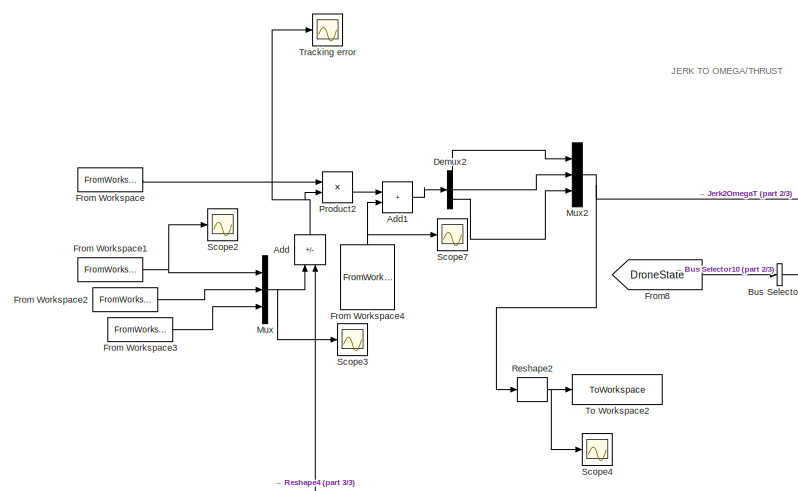
[diagram: root canvas - part 1/3, left side, full height]
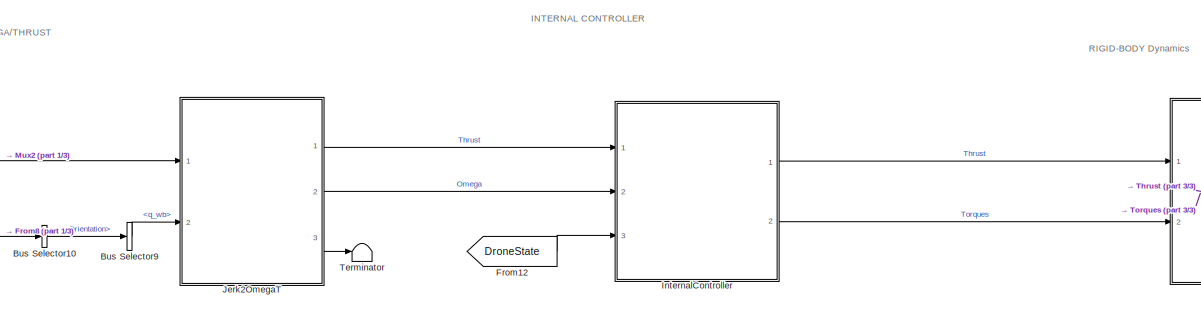
[diagram: root canvas - part 2/3, central region]
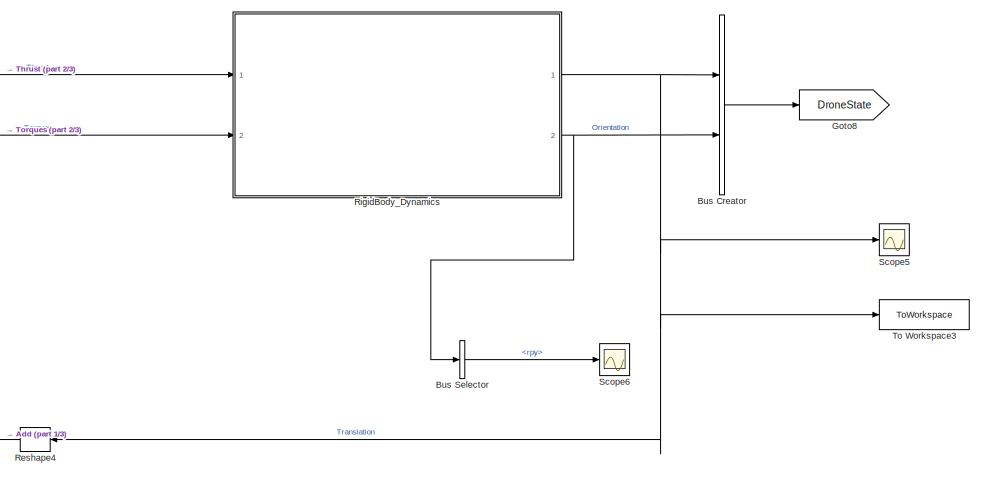
[diagram: root canvas - part 3/3, right side, full height]
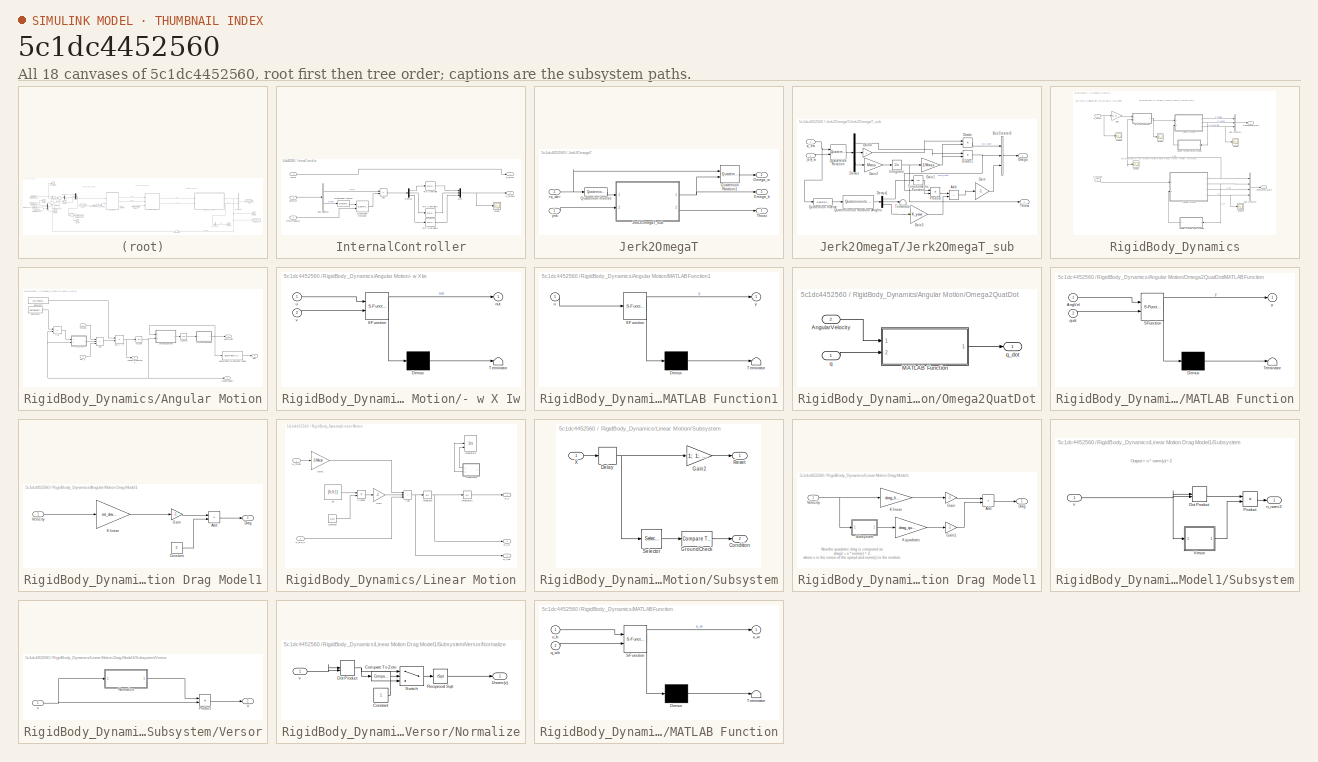
[diagram: thumbnail index - all 18 canvases of the model, root first then tree order]
MODEL slx_5c1dc4452560
KIND model
CONFIG AbsTol = auto
CONFIG EnableMultiTasking = off
CONFIG FixedStep = 0.001
CONFIG MaxStep = auto
CONFIG MinStep = auto
CONFIG RelTol = 1e-3
CONFIG SampleTimeConstraint = Unconstrained
CONFIG SolverName = FixedStepAuto
CONFIG StartTime = 0.0
CONFIG StopTime = total_sim_t
BLOCK [Sum] Add
  IconShape = rectangular
  Inputs = -+
  NameLocation = right
  Ports = [2, 1]
BLOCK [Sum] Add1
  IconShape = rectangular
  Ports = [2, 1]
BLOCK [BusCreator] Bus Creator
  DisplayOption = bar
  InheritFromInputs = on
  Inputs = 2
  Ports = [2, 1]
BLOCK [BusSelector] Bus Selector
  OutputSignals = rpy
  Ports = [1, 1]
BLOCK [BusSelector] Bus Selector10
  OutputSignals = Orientation
  Ports = [1, 1]
BLOCK [BusSelector] Bus Selector9
  OutputSignals = q_wb
  Ports = [1, 1]
BLOCK [Demux] Demux2
  Outputs = 3
  Ports = [1, 3]
BLOCK [FromWorkspace] From Workspace
  VariableName = controller
BLOCK [FromWorkspace] From Workspace1
  VariableName = Reference
BLOCK [FromWorkspace] From Workspace2
  VariableName = Reference_d
BLOCK [FromWorkspace] From Workspace3
  VariableName = Reference_dd
BLOCK [FromWorkspace] From Workspace4
  NameLocation = right
  VariableName = Reference_ddd
BLOCK [From] From12
  GotoTag = DroneState
BLOCK [From] From8
  GotoTag = DroneState
BLOCK [Goto] Goto8
  GotoTag = DroneState
BLOCK [SubSystem] InternalController
  Ports = [3, 2]
  RequestExecContextInheritance = off
BLOCK [Sum] InternalController/Add
  IconShape = rectangular
  Inputs = -+
  Ports = [2, 1]
BLOCK [BusSelector] InternalController/Bus Selector
  OutputSignals = Orientation.b_w,Orientation.q_wb
  Ports = [1, 2]
BLOCK [Demux] InternalController/Demux
  Outputs = 3
  Ports = [1, 3]
BLOCK [Mux] InternalController/Mux
  DisplayOption = bar
  Inputs = 3
  Ports = [3, 1]
BLOCK [Reference] InternalController/PID Controller  REF=pid_lib/PID Controller
  Ports = [1, 1]
  SourceBlock = pid_lib/PID Controller
  SourceProductBaseCode = SL
  SourceType = PID 1dof
BLOCK [Reference] InternalController/PID Controller1  REF=pid_lib/PID Controller
  Ports = [1, 1]
  SourceBlock = pid_lib/PID Controller
  SourceProductBaseCode = SL
  SourceType = PID 1dof
BLOCK [Reference] InternalController/PID Controller2  REF=pid_lib/PID Controller
  Ports = [1, 1]
  SourceBlock = pid_lib/PID Controller
  SourceProductBaseCode = SL
  SourceType = PID 1dof
BLOCK [Reference] InternalController/Quaternion Inverse  REF=aerolibutil/Quaternion
Inverse
  Ports = [1, 1]
  SourceBlock = aerolibutil/Quaternion\nInverse
  SourceProductBaseCode = AE
  SourceType = Quaternion Inverse
BLOCK [Reference] InternalController/Quaternion Rotation  REF=aerolibutil/Quaternion
Rotation
  Ports = [2, 1]
  SourceBlock = aerolibutil/Quaternion\nRotation
  SourceProductBaseCode = AE
  SourceType = Quaternion Rotation
BLOCK [Inport] InternalController/RefOmega_w
  Port = 2
BLOCK [Scope] InternalController/Scope
  Floating = off
  NumInputPorts = 1
  Ports = [1]
  ScopeSpecificationString = Simulink.scopes.TimeScopeBlockCfg('CurrentConfiguration', extmgr.ConfigurationSet(extmgr.Configuration('Core','General UI',true),extmgr.Configuration('Core','Source UI',true),extmgr.Configuration('Sources','WiredSimulink',true,'DataLoggingVariableName','ScopeData1'),extmgr.Configuration('Visuals','Time Domain',true,'SerializedDisplays',{struct('MinYLimReal','-0.000013','MaxYLimReal','0.000008','YL...<+1439ch>
BLOCK [Inport] InternalController/State_w
  Port = 3
BLOCK [Inport] InternalController/Thrust
BLOCK [Outport] InternalController/b_Thrust
BLOCK [Outport] InternalController/b_Torques
  Port = 2
BLOCK [SubSystem] Jerk2OmegaT
  Ports = [2, 3]
  RequestExecContextInheritance = off
BLOCK [Inport] Jerk2OmegaT/<q_wb>
  Port = 2
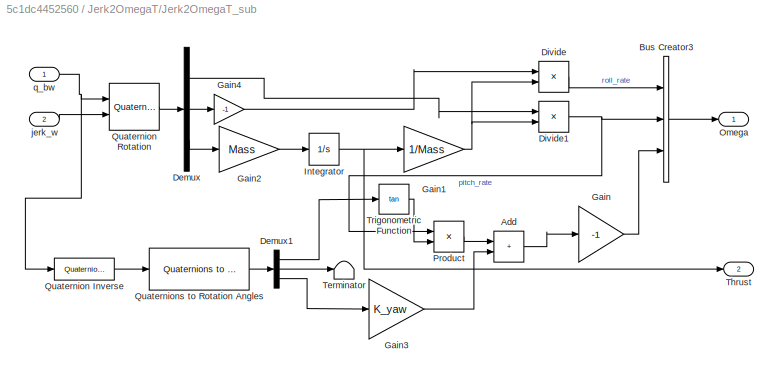
BLOCK [SubSystem] Jerk2OmegaT/Jerk2OmegaT_sub
  Ports = [2, 2]
  RequestExecContextInheritance = off
BLOCK [Sum] Jerk2OmegaT/Jerk2OmegaT_sub/Add
  IconShape = rectangular
  Ports = [2, 1]
BLOCK [BusCreator] Jerk2OmegaT/Jerk2OmegaT_sub/Bus Creator3
  DisplayOption = bar
  InheritFromInputs = on
  Inputs = 3
  Ports = [3, 1]
BLOCK [Demux] Jerk2OmegaT/Jerk2OmegaT_sub/Demux
  Outputs = 3
  Ports = [1, 3]
BLOCK [Demux] Jerk2OmegaT/Jerk2OmegaT_sub/Demux1
  Outputs = 3
  Ports = [1, 3]
BLOCK [Product] Jerk2OmegaT/Jerk2OmegaT_sub/Divide
  Inputs = */
  Ports = [2, 1]
BLOCK [Product] Jerk2OmegaT/Jerk2OmegaT_sub/Divide1
  Inputs = */
  Ports = [2, 1]
BLOCK [Gain] Jerk2OmegaT/Jerk2OmegaT_sub/Gain
  Gain = -1
BLOCK [Gain] Jerk2OmegaT/Jerk2OmegaT_sub/Gain1
  Gain = 1/Mass
BLOCK [Gain] Jerk2OmegaT/Jerk2OmegaT_sub/Gain2
  Gain = Mass
BLOCK [Gain] Jerk2OmegaT/Jerk2OmegaT_sub/Gain3
  Gain = K_yaw
BLOCK [Gain] Jerk2OmegaT/Jerk2OmegaT_sub/Gain4
  Gain = -1
BLOCK [Integrator] Jerk2OmegaT/Jerk2OmegaT_sub/Integrator
  InitialCondition = Mass * G_acc
  LimitOutput = on
  LowerSaturationLimit = mdl_cnstr.Tmin
  Ports = [1, 1]
  UpperSaturationLimit = mdl_cnstr.Tmax
BLOCK [Outport] Jerk2OmegaT/Jerk2OmegaT_sub/Omega
BLOCK [Product] Jerk2OmegaT/Jerk2OmegaT_sub/Product
  Ports = [2, 1]
BLOCK [Reference] Jerk2OmegaT/Jerk2OmegaT_sub/Quaternion Inverse  REF=aerolibutil/Quaternion
Inverse
  Ports = [1, 1]
  SourceBlock = aerolibutil/Quaternion\nInverse
  SourceProductBaseCode = AE
  SourceType = Quaternion Inverse
BLOCK [Reference] Jerk2OmegaT/Jerk2OmegaT_sub/Quaternion Rotation  REF=aerolibutil/Quaternion
Rotation
  Ports = [2, 1]
  SourceBlock = aerolibutil/Quaternion\nRotation
  SourceProductBaseCode = AE
  SourceType = Quaternion Rotation
BLOCK [Reference] Jerk2OmegaT/Jerk2OmegaT_sub/Quaternions to Rotation Angles  REF=sharedtransform/Quaternions to Rotation Angles
  AttributesFormatString = Rotation Order: %<rotationOrder>
  Ports = [1, 1]
  SourceBlock = sharedtransform/Quaternions to Rotation Angles
  SourceProductBaseCode = AE,PW,MT,UV,VE,VP
  SourceType = Quat2Ang
BLOCK [Terminator] Jerk2OmegaT/Jerk2OmegaT_sub/Terminator
BLOCK [Outport] Jerk2OmegaT/Jerk2OmegaT_sub/Thrust
  Port = 2
BLOCK [Trigonometry] Jerk2OmegaT/Jerk2OmegaT_sub/Trigonometric Function
  Operator = tan
  Ports = [1, 1]
BLOCK [Inport] Jerk2OmegaT/Jerk2OmegaT_sub/jerk_w
  Port = 2
BLOCK [Inport] Jerk2OmegaT/Jerk2OmegaT_sub/q_bw
BLOCK [Outport] Jerk2OmegaT/Omega_b
  Port = 3
BLOCK [Outport] Jerk2OmegaT/Omega_w
  Port = 2
BLOCK [Reference] Jerk2OmegaT/Quaternion Inverse  REF=aerolibutil/Quaternion
Inverse
  Ports = [1, 1]
  SourceBlock = aerolibutil/Quaternion\nInverse
  SourceProductBaseCode = AE
  SourceType = Quaternion Inverse
BLOCK [Reference] Jerk2OmegaT/Quaternion Rotation1  REF=aerolibutil/Quaternion
Rotation
  Ports = [2, 1]
  SourceBlock = aerolibutil/Quaternion\nRotation
  SourceProductBaseCode = AE
  SourceType = Quaternion Rotation
BLOCK [Outport] Jerk2OmegaT/Thrust
BLOCK [Inport] Jerk2OmegaT/jerk
BLOCK [Mux] Mux
  DisplayOption = bar
  Inputs = 3
  Ports = [3, 1]
BLOCK [Mux] Mux2
  DisplayOption = bar
  Inputs = 3
  Ports = [3, 1]
BLOCK [Product] Product2
  Multiplication = Matrix(*)
  Ports = [2, 1]
BLOCK [Reshape] Reshape2
  Ports = [1, 1]
BLOCK [Reshape] Reshape4
  NameLocation = top
  OutputDimensionality = Column vector (2-D)
  Ports = [1, 1]
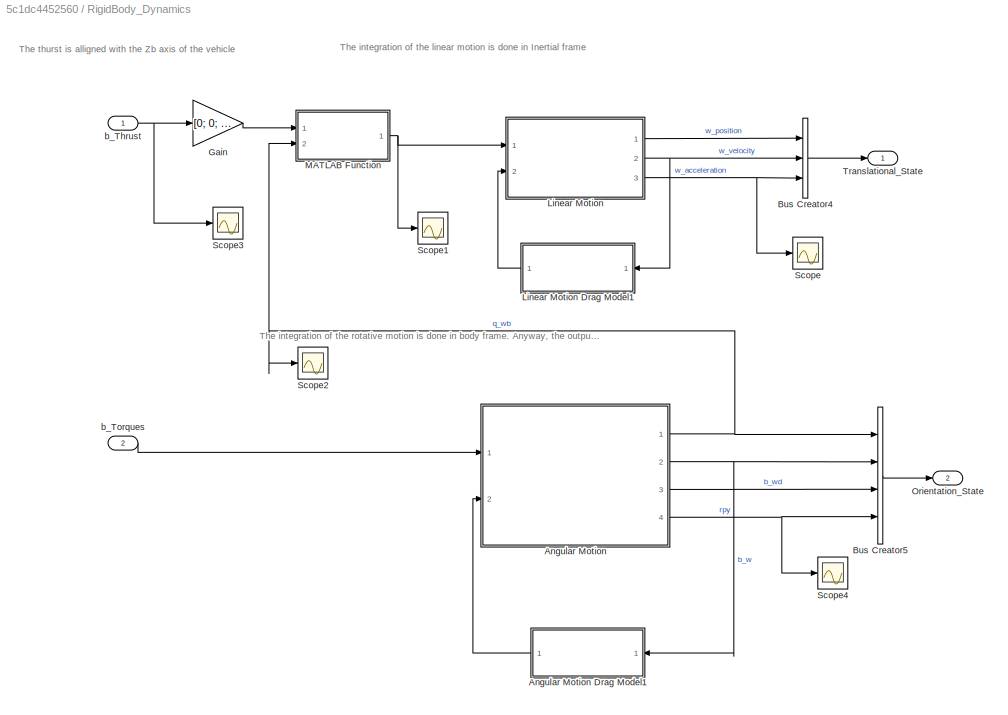
BLOCK [SubSystem] RigidBody_Dynamics
  Ports = [2, 2]
  RequestExecContextInheritance = off
BLOCK [SubSystem] RigidBody_Dynamics/Angular Motion
  Ports = [2, 4]
  RequestExecContextInheritance = off
BLOCK [SubSystem] RigidBody_Dynamics/Angular Motion Drag Model1
  NameLocation = top
  Ports = [1, 1]
  RequestExecContextInheritance = off
BLOCK [Sum] RigidBody_Dynamics/Angular Motion Drag Model1/Add
  IconShape = rectangular
  Ports = [2, 1]
BLOCK [Constant] RigidBody_Dynamics/Angular Motion Drag Model1/Constant
  Value = 0
BLOCK [Outport] RigidBody_Dynamics/Angular Motion Drag Model1/Drag
BLOCK [Gain] RigidBody_Dynamics/Angular Motion Drag Model1/Gain
  Gain = -1
BLOCK [Gain] RigidBody_Dynamics/Angular Motion Drag Model1/K linear
  Gain = rot_drag_linear
BLOCK [Inport] RigidBody_Dynamics/Angular Motion Drag Model1/Velocity
BLOCK [SubSystem] RigidBody_Dynamics/Angular Motion/- w X Iw
  ErrorFcn = Stateflow.Translate.translate
  PermitHierarchicalResolution = ExplicitOnly
  Ports = [2, 1]
  RequestExecContextInheritance = off
  SFBlockType = MATLAB Function
  TreatAsAtomicUnit = on
BLOCK [Demux] RigidBody_Dynamics/Angular Motion/- w X Iw/ Demux 
  Outputs = 1
  Ports = [1, 1]
BLOCK [S-Function] RigidBody_Dynamics/Angular Motion/- w X Iw/ SFunction 
  EnableBusSupport = on
  FunctionName = sf_sfun
  PortCounts = [2 2]
  Ports = [2, 2]
  SFcnIsStateOwnerBlock = off
  SFunctionDeploymentMode = off
  Tag = Stateflow S-Function 3
BLOCK [Terminator] RigidBody_Dynamics/Angular Motion/- w X Iw/ Terminator 
BLOCK [Outport] RigidBody_Dynamics/Angular Motion/- w X Iw/out
BLOCK [Inport] RigidBody_Dynamics/Angular Motion/- w X Iw/u
BLOCK [Inport] RigidBody_Dynamics/Angular Motion/- w X Iw/v
  Port = 2
BLOCK [Integrator] RigidBody_Dynamics/Angular Motion/Acc2Vel
  InitialCondition = InitialAngularVelocity
  Ports = [1, 1]
BLOCK [Sum] RigidBody_Dynamics/Angular Motion/Add
  IconShape = rectangular
  Inputs = +++
  Ports = [3, 1]
BLOCK [Outport] RigidBody_Dynamics/Angular Motion/AngularAcceleration
  Port = 3
BLOCK [Outport] RigidBody_Dynamics/Angular Motion/AngularVelocity
  Port = 2
BLOCK [Constant] RigidBody_Dynamics/Angular Motion/Constant1
  Value = InertiaMatrix
BLOCK [Constant] RigidBody_Dynamics/Angular Motion/Constant2
  Value = Inv_InertiaMatrix
BLOCK [Inport] RigidBody_Dynamics/Angular Motion/Ext_T
  Port = 2
BLOCK [Product] RigidBody_Dynamics/Angular Motion/I w
  Multiplication = Matrix(*)
  Ports = [2, 1]
BLOCK [SubSystem] RigidBody_Dynamics/Angular Motion/MATLAB Function1
  ErrorFcn = Stateflow.Translate.translate
  PermitHierarchicalResolution = ExplicitOnly
  Ports = [1, 1]
  RequestExecContextInheritance = off
  SFBlockType = MATLAB Function
  TreatAsAtomicUnit = on
BLOCK [Demux] RigidBody_Dynamics/Angular Motion/MATLAB Function1/ Demux 
  Outputs = 1
  Ports = [1, 1]
BLOCK [S-Function] RigidBody_Dynamics/Angular Motion/MATLAB Function1/ SFunction 
  EnableBusSupport = on
  FunctionName = sf_sfun
  PortCounts = [1 2]
  Ports = [1, 2]
  SFcnIsStateOwnerBlock = off
  SFunctionDeploymentMode = off
  Tag = Stateflow S-Function 9
BLOCK [Terminator] RigidBody_Dynamics/Angular Motion/MATLAB Function1/ Terminator 
BLOCK [Inport] RigidBody_Dynamics/Angular Motion/MATLAB Function1/u
BLOCK [Outport] RigidBody_Dynamics/Angular Motion/MATLAB Function1/y
BLOCK [SubSystem] RigidBody_Dynamics/Angular Motion/Omega2QuatDot
  Ports = [2, 1]
  RequestExecContextInheritance = off
BLOCK [Inport] RigidBody_Dynamics/Angular Motion/Omega2QuatDot/AngularVelocity
  Port = 2
BLOCK [SubSystem] RigidBody_Dynamics/Angular Motion/Omega2QuatDot/MATLAB Function
  ErrorFcn = Stateflow.Translate.translate
  PermitHierarchicalResolution = ExplicitOnly
  Ports = [2, 1]
  RequestExecContextInheritance = off
  SFBlockType = MATLAB Function
  TreatAsAtomicUnit = on
BLOCK [Demux] RigidBody_Dynamics/Angular Motion/Omega2QuatDot/MATLAB Function/ Demux 
  Outputs = 1
  Ports = [1, 1]
BLOCK [S-Function] RigidBody_Dynamics/Angular Motion/Omega2QuatDot/MATLAB Function/ SFunction 
  EnableBusSupport = on
  FunctionName = sf_sfun
  PortCounts = [2 2]
  Ports = [2, 2]
  SFcnIsStateOwnerBlock = off
  SFunctionDeploymentMode = off
  Tag = Stateflow S-Function 5
BLOCK [Terminator] RigidBody_Dynamics/Angular Motion/Omega2QuatDot/MATLAB Function/ Terminator 
BLOCK [Inport] RigidBody_Dynamics/Angular Motion/Omega2QuatDot/MATLAB Function/AngVel
BLOCK [Inport] RigidBody_Dynamics/Angular Motion/Omega2QuatDot/MATLAB Function/quat
  Port = 2
BLOCK [Outport] RigidBody_Dynamics/Angular Motion/Omega2QuatDot/MATLAB Function/y
BLOCK [Inport] RigidBody_Dynamics/Angular Motion/Omega2QuatDot/q
BLOCK [Outport] RigidBody_Dynamics/Angular Motion/Omega2QuatDot/q_dot
BLOCK [Outport] RigidBody_Dynamics/Angular Motion/Quaternion
BLOCK [Reference] RigidBody_Dynamics/Angular Motion/Quaternions to Rotation Angles  REF=sharedtransform/Quaternions to Rotation Angles
  AttributesFormatString = Rotation Order: %<rotationOrder>
  Ports = [1, 1]
  SourceBlock = sharedtransform/Quaternions to Rotation Angles
  SourceProductBaseCode = AE,PW,MT,UV,VE,VP
  SourceType = Quat2Ang
BLOCK [Outport] RigidBody_Dynamics/Angular Motion/RPY
  Port = 4
BLOCK [Inport] RigidBody_Dynamics/Angular Motion/Torques
BLOCK [Product] RigidBody_Dynamics/Angular Motion/inv(I) * t
  Multiplication = Matrix(*)
  Ports = [2, 1]
BLOCK [Integrator] RigidBody_Dynamics/Angular Motion/q_dot2q
  InitialCondition = q0
  Ports = [1, 1]
BLOCK [BusCreator] RigidBody_Dynamics/Bus Creator4
  DisplayOption = bar
  InheritFromInputs = on
  Inputs = 3
  Ports = [3, 1]
BLOCK [BusCreator] RigidBody_Dynamics/Bus Creator5
  DisplayOption = bar
  InheritFromInputs = on
  Inputs = 4
  Ports = [4, 1]
BLOCK [Gain] RigidBody_Dynamics/Gain
  Gain = [0; 0; 1]
BLOCK [SubSystem] RigidBody_Dynamics/Linear Motion
  Ports = [2, 3]
  RequestExecContextInheritance = off
BLOCK [SubSystem] RigidBody_Dynamics/Linear Motion Drag Model1
  NameLocation = top
  Ports = [1, 1]
  RequestExecContextInheritance = off
BLOCK [Sum] RigidBody_Dynamics/Linear Motion Drag Model1/Add
  IconShape = rectangular
  Ports = [2, 1]
BLOCK [Outport] RigidBody_Dynamics/Linear Motion Drag Model1/Drag
BLOCK [Gain] RigidBody_Dynamics/Linear Motion Drag Model1/Gain
  Gain = -1
BLOCK [Gain] RigidBody_Dynamics/Linear Motion Drag Model1/Gain1
  Gain = -1
BLOCK [Gain] RigidBody_Dynamics/Linear Motion Drag Model1/K linear
  Gain = drag_linear
BLOCK [Gain] RigidBody_Dynamics/Linear Motion Drag Model1/K quadratic
  Gain = drag_quadratic
BLOCK [SubSystem] RigidBody_Dynamics/Linear Motion Drag Model1/Subsystem
  Ports = [1, 1]
  RequestExecContextInheritance = off
BLOCK [DotProduct] RigidBody_Dynamics/Linear Motion Drag Model1/Subsystem/Dot Product
  OutDataTypeStr = Inherit: Inherit via internal rule
BLOCK [Product] RigidBody_Dynamics/Linear Motion Drag Model1/Subsystem/Product
  Ports = [2, 1]
BLOCK [SubSystem] RigidBody_Dynamics/Linear Motion Drag Model1/Subsystem/Versor
  Ports = [1, 1]
  RequestExecContextInheritance = off
BLOCK [SubSystem] RigidBody_Dynamics/Linear Motion Drag Model1/Subsystem/Versor/Normalize
  Ports = [1, 1]
  RequestExecContextInheritance = off
BLOCK [Outport] RigidBody_Dynamics/Linear Motion Drag Model1/Subsystem/Versor/Normalize/1//norm(v)
BLOCK [Reference] RigidBody_Dynamics/Linear Motion Drag Model1/Subsystem/Versor/Normalize/Compare To Zero  REF=simulink/Logic and Bit
Operations/Compare
To Zero
  Ports = [1, 1]
  SourceBlock = simulink/Logic and Bit\nOperations/Compare\nTo Zero
  SourceProductBaseCode = SL
  SourceType = Compare To Zero
BLOCK [Constant] RigidBody_Dynamics/Linear Motion Drag Model1/Subsystem/Versor/Normalize/Constant
BLOCK [DotProduct] RigidBody_Dynamics/Linear Motion Drag Model1/Subsystem/Versor/Normalize/Dot Product
  OutDataTypeStr = Inherit: Inherit via internal rule
BLOCK [Sqrt] RigidBody_Dynamics/Linear Motion Drag Model1/Subsystem/Versor/Normalize/Reciprocal Sqrt
  Operator = rSqrt
BLOCK [Switch] RigidBody_Dynamics/Linear Motion Drag Model1/Subsystem/Versor/Normalize/Switch
  Criteria = u2 > Threshold
  InputSameDT = off
  SaturateOnIntegerOverflow = off
BLOCK [Inport] RigidBody_Dynamics/Linear Motion Drag Model1/Subsystem/Versor/Normalize/v
BLOCK [Product] RigidBody_Dynamics/Linear Motion Drag Model1/Subsystem/Versor/Product
  Ports = [2, 1]
BLOCK [Outport] RigidBody_Dynamics/Linear Motion Drag Model1/Subsystem/Versor/n
BLOCK [Inport] RigidBody_Dynamics/Linear Motion Drag Model1/Subsystem/Versor/v
BLOCK [Outport] RigidBody_Dynamics/Linear Motion Drag Model1/Subsystem/n_norm2
BLOCK [Inport] RigidBody_Dynamics/Linear Motion Drag Model1/Subsystem/v
BLOCK [Inport] RigidBody_Dynamics/Linear Motion Drag Model1/Velocity
BLOCK [Sum] RigidBody_Dynamics/Linear Motion/Add
  IconShape = rectangular
  Inputs = +++
  Ports = [3, 1]
BLOCK [Constant] RigidBody_Dynamics/Linear Motion/Constant
  Value = G_acc
BLOCK [Gain] RigidBody_Dynamics/Linear Motion/Gain
  Gain = -1
BLOCK [Gain] RigidBody_Dynamics/Linear Motion/Gain1
  Gain = 1/Mass
BLOCK [Integrator] RigidBody_Dynamics/Linear Motion/Integrator
  ContinuousStateAttributes = 'velocity'
  InitialCondition = InitialVelocity
  Ports = [1, 1]
BLOCK [Integrator] RigidBody_Dynamics/Linear Motion/Integrator1
  Commented = on
  ContinuousStateAttributes = 'position'
  ExternalReset = level
  InitialCondition = InitialPosition
  InitialConditionSource = external
  Ports = [3, 1]
BLOCK [Integrator] RigidBody_Dynamics/Linear Motion/Integrator2
  ContinuousStateAttributes = 'position'
  InitialCondition = InitialPosition
  Ports = [1, 1]
BLOCK [Product] RigidBody_Dynamics/Linear Motion/Product
  Ports = [2, 1]
BLOCK [SubSystem] RigidBody_Dynamics/Linear Motion/Subsystem
  Commented = on
  NameLocation = top
  Ports = [1, 2]
  RequestExecContextInheritance = off
BLOCK [Outport] RigidBody_Dynamics/Linear Motion/Subsystem/Condition
  Port = 2
BLOCK [Delay] RigidBody_Dynamics/Linear Motion/Subsystem/Delay
  DelayLength = 1
  InitialCondition = 0
  InputPortMap = u0
  Ports = [1, 1]
BLOCK [Gain] RigidBody_Dynamics/Linear Motion/Subsystem/Gain2
  Gain = [1; 1; 0]
BLOCK [Reference] RigidBody_Dynamics/Linear Motion/Subsystem/GroundCheck  REF=simulink/Logic and Bit
Operations/Compare
To Constant
  Ports = [1, 1]
  SourceBlock = simulink/Logic and Bit\nOperations/Compare\nTo Constant
  SourceProductBaseCode = SL
  SourceType = Compare To Constant
BLOCK [Outport] RigidBody_Dynamics/Linear Motion/Subsystem/Reset
BLOCK [Selector] RigidBody_Dynamics/Linear Motion/Subsystem/Selector
  IndexOptions = Index vector (dialog)
  Indices = [3]
  InputPortWidth = 3
  OutputSizes = 1
  Ports = [1, 1]
BLOCK [Inport] RigidBody_Dynamics/Linear Motion/Subsystem/X
BLOCK [Constant] RigidBody_Dynamics/Linear Motion/Zw
  Value = [0;0;1]
BLOCK [Inport] RigidBody_Dynamics/Linear Motion/w_Ext_F
  Port = 2
BLOCK [Inport] RigidBody_Dynamics/Linear Motion/w_Thrust
BLOCK [Outport] RigidBody_Dynamics/Linear Motion/w_X
BLOCK [Outport] RigidBody_Dynamics/Linear Motion/w_Xd
  Port = 2
BLOCK [Outport] RigidBody_Dynamics/Linear Motion/w_Xdd
  Port = 3
BLOCK [SubSystem] RigidBody_Dynamics/MATLAB Function
  ErrorFcn = Stateflow.Translate.translate
  PermitHierarchicalResolution = ExplicitOnly
  Ports = [2, 1]
  RequestExecContextInheritance = off
  SFBlockType = MATLAB Function
  TreatAsAtomicUnit = on
BLOCK [Demux] RigidBody_Dynamics/MATLAB Function/ Demux 
  Outputs = 1
  Ports = [1, 1]
BLOCK [S-Function] RigidBody_Dynamics/MATLAB Function/ SFunction 
  EnableBusSupport = on
  FunctionName = sf_sfun
  PortCounts = [2 2]
  Ports = [2, 2]
  SFcnIsStateOwnerBlock = off
  SFunctionDeploymentMode = off
  Tag = Stateflow S-Function 10
BLOCK [Terminator] RigidBody_Dynamics/MATLAB Function/ Terminator 
BLOCK [Inport] RigidBody_Dynamics/MATLAB Function/q_wb
  Port = 2
BLOCK [Inport] RigidBody_Dynamics/MATLAB Function/u_b
BLOCK [Outport] RigidBody_Dynamics/MATLAB Function/u_w
BLOCK [Outport] RigidBody_Dynamics/Orientation_State
  Port = 2
BLOCK [Scope] RigidBody_Dynamics/Scope
  Floating = off
  NumInputPorts = 1
  Ports = [1]
  ScopeSpecificationString = Simulink.scopes.TimeScopeBlockCfg('CurrentConfiguration', extmgr.ConfigurationSet(extmgr.Configuration('Core','General UI',true),extmgr.Configuration('Core','Source UI',true),extmgr.Configuration('Sources','WiredSimulink',true,'DataLoggingVariableName','ScopeData5'),extmgr.Configuration('Visuals','Time Domain',true,'SerializedDisplays',{struct('MinYLimReal','-5.82619','MaxYLimReal','6.16241','YLab...<+1442ch>
BLOCK [Scope] RigidBody_Dynamics/Scope1
  Floating = off
  NumInputPorts = 1
  Ports = [1]
  ScopeSpecificationString = Simulink.scopes.TimeScopeBlockCfg('CurrentConfiguration', extmgr.ConfigurationSet(extmgr.Configuration('Core','General UI',true),extmgr.Configuration('Core','Source UI',true),extmgr.Configuration('Sources','WiredSimulink',true,'DataLoggingVariableName','ScopeData6'),extmgr.Configuration('Visuals','Time Domain',true,'SerializedDisplays',{struct('MinYLimReal','-0.21438','MaxYLimReal','0.44866','YLab...<+1778ch>
BLOCK [Scope] RigidBody_Dynamics/Scope2
  Floating = off
  NumInputPorts = 1
  Ports = [1]
  ScopeSpecificationString = Simulink.scopes.TimeScopeBlockCfg('CurrentConfiguration', extmgr.ConfigurationSet(extmgr.Configuration('Core','General UI',true),extmgr.Configuration('Core','Source UI',true),extmgr.Configuration('Sources','WiredSimulink',true,'DataLoggingVariableName','ScopeData7'),extmgr.Configuration('Visuals','Time Domain',true,'SerializedDisplays',{struct('MinYLimReal','-0.16948','MaxYLimReal','1.12853','YLab...<+1768ch>
BLOCK [Scope] RigidBody_Dynamics/Scope3
  Floating = off
  NumInputPorts = 1
  Ports = [1]
  ScopeSpecificationString = Simulink.scopes.TimeScopeBlockCfg('CurrentConfiguration', extmgr.ConfigurationSet(extmgr.Configuration('Core','General UI',true),extmgr.Configuration('Core','Source UI',true),extmgr.Configuration('Sources','WiredSimulink',true,'DataLoggingVariableName','ScopeData8'),extmgr.Configuration('Visuals','Time Domain',true,'SerializedDisplays',{struct('MinYLimReal','0.29216','MaxYLimReal','0.41355','YLabe...<+1697ch>
BLOCK [Scope] RigidBody_Dynamics/Scope4
  Floating = off
  NumInputPorts = 1
  Ports = [1]
  ScopeSpecificationString = Simulink.scopes.TimeScopeBlockCfg('CurrentConfiguration', extmgr.ConfigurationSet(extmgr.Configuration('Core','General UI',true),extmgr.Configuration('Core','Source UI',true),extmgr.Configuration('Sources','WiredSimulink',true,'DataLoggingVariableName','ScopeData1'),extmgr.Configuration('Visuals','Time Domain',true,'SerializedDisplays',{struct('MinYLimReal','-0.21568','MaxYLimReal','0.21466','YLab...<+1742ch>
BLOCK [Outport] RigidBody_Dynamics/Translational_State
BLOCK [Inport] RigidBody_Dynamics/b_Thrust
BLOCK [Inport] RigidBody_Dynamics/b_Torques
  Port = 2
BLOCK [Scope] Scope2
  Floating = off
  NumInputPorts = 1
  Ports = [1]
  ScopeSpecificationString = Simulink.scopes.TimeScopeBlockCfg('CurrentConfiguration', extmgr.ConfigurationSet(extmgr.Configuration('Core','General UI',true),extmgr.Configuration('Core','Source UI',true),extmgr.Configuration('Sources','WiredSimulink',true,'DataLoggingVariableName','ScopeData1'),extmgr.Configuration('Visuals','Time Domain',true,'SerializedDisplays',{struct('MinYLimReal','-2.29833','MaxYLimReal','1.36648','YLab...<+1778ch>
BLOCK [Scope] Scope3
  Floating = off
  NumInputPorts = 1
  Ports = [1]
  ScopeSpecificationString = Simulink.scopes.TimeScopeBlockCfg('CurrentConfiguration', extmgr.ConfigurationSet(extmgr.Configuration('Core','General UI',true),extmgr.Configuration('Core','Source UI',true),extmgr.Configuration('Sources','WiredSimulink',true,'DataLoggingVariableName','ScopeData2'),extmgr.Configuration('Visuals','Time Domain',true,'SerializedDisplays',{struct('MinYLimReal','-3.66092','MaxYLimReal','3.02316','YLab...<+1898ch>
BLOCK [Scope] Scope4
  Floating = off
  NumInputPorts = 1
  Ports = [1]
  ScopeSpecificationString = Simulink.scopes.TimeScopeBlockCfg('CurrentConfiguration', extmgr.ConfigurationSet(extmgr.Configuration('Core','General UI',true),extmgr.Configuration('Core','Source UI',true),extmgr.Configuration('Sources','WiredSimulink',true,'DataLoggingVariableName','ScopeData1'),extmgr.Configuration('Visuals','Time Domain',true,'SerializedDisplays',{struct('MinYLimReal','-478.76376','MaxYLimReal','480.50109','...<+1771ch>
BLOCK [Scope] Scope5
  Floating = off
  NumInputPorts = 1
  Ports = [1]
  ScopeSpecificationString = Simulink.scopes.TimeScopeBlockCfg('CurrentConfiguration', extmgr.ConfigurationSet(extmgr.Configuration('Core','General UI',true),extmgr.Configuration('Core','Source UI',true),extmgr.Configuration('Sources','WiredSimulink',true,'DataLoggingVariableName','ScopeData2'),extmgr.Configuration('Visuals','Time Domain',true,'SerializedDisplays',{struct('MinYLimReal','-11.37894','MaxYLimReal','4.2723','YLab...<+1897ch>
BLOCK [Scope] Scope6
  Floating = off
  NumInputPorts = 1
  Ports = [1]
  ScopeSpecificationString = Simulink.scopes.TimeScopeBlockCfg('CurrentConfiguration', extmgr.ConfigurationSet(extmgr.Configuration('Core','General UI',true),extmgr.Configuration('Core','Source UI',true),extmgr.Configuration('Sources','WiredSimulink',true,'DataLoggingVariableName','ScopeData3'),extmgr.Configuration('Visuals','Time Domain',true,'SerializedDisplays',{struct('MinYLimReal','-0.21553','MaxYLimReal','0.21445','YLab...<+1459ch>
BLOCK [Scope] Scope7
  Floating = off
  NumInputPorts = 1
  Ports = [1]
  ScopeSpecificationString = Simulink.scopes.TimeScopeBlockCfg('CurrentConfiguration', extmgr.ConfigurationSet(extmgr.Configuration('Core','General UI',true),extmgr.Configuration('Core','Source UI',true),extmgr.Configuration('Sources','WiredSimulink',true,'DataLoggingVariableName','ScopeData3'),extmgr.Configuration('Visuals','Time Domain',true,'SerializedDisplays',{struct('MinYLimReal','-476.66203','MaxYLimReal','476.66353','...<+1792ch>
BLOCK [Terminator] Terminator
BLOCK [ToWorkspace] To Workspace2
  FixptAsFi = on
  MaxDataPoints = inf
  Ports = [1]
  SampleTime = -1
  SaveFormat = Structure With Time
  VariableName = v
BLOCK [ToWorkspace] To Workspace3
  FixptAsFi = on
  MaxDataPoints = inf
  Ports = [1]
  SampleTime = -1
  SaveFormat = Structure With Time
  VariableName = z
BLOCK [Scope] Tracking error
  Floating = off
  NumInputPorts = 1
  Ports = [1]
  ScopeSpecificationString = Simulink.scopes.TimeScopeBlockCfg('CurrentConfiguration', extmgr.ConfigurationSet(extmgr.Configuration('Core','General UI',true),extmgr.Configuration('Core','Source UI',true),extmgr.Configuration('Sources','WiredSimulink',true,'DataLoggingVariableName','ScopeData2'),extmgr.Configuration('Visuals','Time Domain',true,'SerializedDisplays',{struct('MinYLimReal','-0.49734','MaxYLimReal','0.36767','YLab...<+1834ch>
ANNOTATION (root): INTERNAL CONTROLLER
ANNOTATION (root): JERK TO OMEGA/THRUST
ANNOTATION (root): RIGID-BODY Dynamics
ANNOTATION RigidBody_Dynamics: The integration of the linear motion is done in Inertial frame
ANNOTATION RigidBody_Dynamics: The integration of the rotative motion is done in body frame. Anyway, the output quaternion is the one that maps local quantities into global.
ANNOTATION RigidBody_Dynamics: The thurst is alligned with the Zb axis of the vehicle
ANNOTATION RigidBody_Dynamics/Linear Motion Drag Model1: Now the quadratic drag is computed as drag2 = n * norm(v) ^ 2, where n is the versor of the speed and norm(v) is the module.
ANNOTATION RigidBody_Dynamics/Linear Motion Drag Model1/Subsystem: Output = n * norm(v) ^ 2
LINE Add1:1 -> Demux2:1
NET Add:1 -> Product2:2, Tracking error:1
LINE Bus Creator:1 -> Goto8:1
LINE Bus Selector10:1 -> Bus Selector9:1
LINE Bus Selector9:1 -> Jerk2OmegaT:2
LINE Bus Selector:1 -> Scope6:1
LINE Demux2:1 -> Mux2:1
LINE Demux2:2 -> Mux2:2
LINE Demux2:3 -> Mux2:3
NET From Workspace1:1 -> Mux:1, Scope2:1
LINE From Workspace2:1 -> Mux:2
LINE From Workspace3:1 -> Mux:3
NET From Workspace4:1 -> Add1:2, Scope7:1
LINE From Workspace:1 -> Product2:1
LINE From12:1 -> InternalController:3
LINE From8:1 -> Bus Selector10:1
LINE InternalController/Add:1 -> InternalController/Demux:1
LINE InternalController/Bus Selector:1 -> InternalController/Add:1
LINE InternalController/Bus Selector:2 -> InternalController/Quaternion Inverse:1
LINE InternalController/Demux:1 -> InternalController/PID Controller:1
LINE InternalController/Demux:2 -> InternalController/PID Controller1:1
LINE InternalController/Demux:3 -> InternalController/PID Controller2:1
NET InternalController/Mux:1 -> InternalController/Scope:1, InternalController/b_Torques:1
LINE InternalController/PID Controller1:1 -> InternalController/Mux:2
LINE InternalController/PID Controller2:1 -> InternalController/Mux:3
LINE InternalController/PID Controller:1 -> InternalController/Mux:1
LINE InternalController/Quaternion Inverse:1 -> InternalController/Quaternion Rotation:1
LINE InternalController/Quaternion Rotation:1 -> InternalController/Add:2
LINE InternalController/RefOmega_w:1 -> InternalController/Quaternion Rotation:2
LINE InternalController/State_w:1 -> InternalController/Bus Selector:1
LINE InternalController/Thrust:1 -> InternalController/b_Thrust:1
LINE InternalController:1 -> RigidBody_Dynamics:1
LINE InternalController:2 -> RigidBody_Dynamics:2
NET Jerk2OmegaT/<q_wb>:1 -> Jerk2OmegaT/Quaternion Inverse:1, Jerk2OmegaT/Quaternion Rotation1:1
LINE Jerk2OmegaT/Jerk2OmegaT_sub/Add:1 -> Jerk2OmegaT/Jerk2OmegaT_sub/Gain:1
LINE Jerk2OmegaT/Jerk2OmegaT_sub/Bus Creator3:1 -> Jerk2OmegaT/Jerk2OmegaT_sub/Omega:1
LINE Jerk2OmegaT/Jerk2OmegaT_sub/Demux1:1 -> Jerk2OmegaT/Jerk2OmegaT_sub/Trigonometric Function:1
LINE Jerk2OmegaT/Jerk2OmegaT_sub/Demux1:2 -> Jerk2OmegaT/Jerk2OmegaT_sub/Terminator:1
LINE Jerk2OmegaT/Jerk2OmegaT_sub/Demux1:3 -> Jerk2OmegaT/Jerk2OmegaT_sub/Gain3:1
LINE Jerk2OmegaT/Jerk2OmegaT_sub/Demux:1 -> Jerk2OmegaT/Jerk2OmegaT_sub/Divide1:1
LINE Jerk2OmegaT/Jerk2OmegaT_sub/Demux:2 -> Jerk2OmegaT/Jerk2OmegaT_sub/Gain4:1
LINE Jerk2OmegaT/Jerk2OmegaT_sub/Demux:3 -> Jerk2OmegaT/Jerk2OmegaT_sub/Gain2:1
NET Jerk2OmegaT/Jerk2OmegaT_sub/Divide1:1 -> Jerk2OmegaT/Jerk2OmegaT_sub/Bus Creator3:2, Jerk2OmegaT/Jerk2OmegaT_sub/Product:1
LINE Jerk2OmegaT/Jerk2OmegaT_sub/Divide:1 -> Jerk2OmegaT/Jerk2OmegaT_sub/Bus Creator3:1
NET Jerk2OmegaT/Jerk2OmegaT_sub/Gain1:1 -> Jerk2OmegaT/Jerk2OmegaT_sub/Divide1:2, Jerk2OmegaT/Jerk2OmegaT_sub/Divide:2
LINE Jerk2OmegaT/Jerk2OmegaT_sub/Gain2:1 -> Jerk2OmegaT/Jerk2OmegaT_sub/Integrator:1
LINE Jerk2OmegaT/Jerk2OmegaT_sub/Gain3:1 -> Jerk2OmegaT/Jerk2OmegaT_sub/Add:2
LINE Jerk2OmegaT/Jerk2OmegaT_sub/Gain4:1 -> Jerk2OmegaT/Jerk2OmegaT_sub/Divide:1
LINE Jerk2OmegaT/Jerk2OmegaT_sub/Gain:1 -> Jerk2OmegaT/Jerk2OmegaT_sub/Bus Creator3:3
NET Jerk2OmegaT/Jerk2OmegaT_sub/Integrator:1 -> Jerk2OmegaT/Jerk2OmegaT_sub/Gain1:1, Jerk2OmegaT/Jerk2OmegaT_sub/Thrust:1
LINE Jerk2OmegaT/Jerk2OmegaT_sub/Product:1 -> Jerk2OmegaT/Jerk2OmegaT_sub/Add:1
LINE Jerk2OmegaT/Jerk2OmegaT_sub/Quaternion Inverse:1 -> Jerk2OmegaT/Jerk2OmegaT_sub/Quaternions to Rotation Angles:1
LINE Jerk2OmegaT/Jerk2OmegaT_sub/Quaternion Rotation:1 -> Jerk2OmegaT/Jerk2OmegaT_sub/Demux:1
LINE Jerk2OmegaT/Jerk2OmegaT_sub/Quaternions to Rotation Angles:1 -> Jerk2OmegaT/Jerk2OmegaT_sub/Demux1:1
LINE Jerk2OmegaT/Jerk2OmegaT_sub/Trigonometric Function:1 -> Jerk2OmegaT/Jerk2OmegaT_sub/Product:2
LINE Jerk2OmegaT/Jerk2OmegaT_sub/jerk_w:1 -> Jerk2OmegaT/Jerk2OmegaT_sub/Quaternion Rotation:2
NET Jerk2OmegaT/Jerk2OmegaT_sub/q_bw:1 -> Jerk2OmegaT/Jerk2OmegaT_sub/Quaternion Inverse:1, Jerk2OmegaT/Jerk2OmegaT_sub/Quaternion Rotation:1
NET Jerk2OmegaT/Jerk2OmegaT_sub:1 -> Jerk2OmegaT/Omega_b:1, Jerk2OmegaT/Quaternion Rotation1:2
LINE Jerk2OmegaT/Jerk2OmegaT_sub:2 -> Jerk2OmegaT/Thrust:1
LINE Jerk2OmegaT/Quaternion Inverse:1 -> Jerk2OmegaT/Jerk2OmegaT_sub:1
LINE Jerk2OmegaT/Quaternion Rotation1:1 -> Jerk2OmegaT/Omega_w:1
LINE Jerk2OmegaT/jerk:1 -> Jerk2OmegaT/Jerk2OmegaT_sub:2
LINE Jerk2OmegaT:1 -> InternalController:1
LINE Jerk2OmegaT:2 -> InternalController:2
LINE Jerk2OmegaT:3 -> Terminator:1
NET Mux2:1 -> Jerk2OmegaT:1, Reshape2:1
NET Mux:1 -> Add:1, Scope3:1
LINE Product2:1 -> Add1:1
NET Reshape2:1 -> Scope4:1, To Workspace2:1
LINE Reshape4:1 -> Add:2
LINE RigidBody_Dynamics/Angular Motion Drag Model1/Add:1 -> RigidBody_Dynamics/Angular Motion Drag Model1/Drag:1
LINE RigidBody_Dynamics/Angular Motion Drag Model1/Constant:1 -> RigidBody_Dynamics/Angular Motion Drag Model1/Add:2
LINE RigidBody_Dynamics/Angular Motion Drag Model1/Gain:1 -> RigidBody_Dynamics/Angular Motion Drag Model1/Add:1
LINE RigidBody_Dynamics/Angular Motion Drag Model1/K linear:1 -> RigidBody_Dynamics/Angular Motion Drag Model1/Gain:1
LINE RigidBody_Dynamics/Angular Motion Drag Model1/Velocity:1 -> RigidBody_Dynamics/Angular Motion Drag Model1/K linear:1
LINE RigidBody_Dynamics/Angular Motion Drag Model1:1 -> RigidBody_Dynamics/Angular Motion:2
LINE RigidBody_Dynamics/Angular Motion/- w X Iw:1 -> RigidBody_Dynamics/Angular Motion/Add:2
NET RigidBody_Dynamics/Angular Motion/Acc2Vel:1 -> RigidBody_Dynamics/Angular Motion/- w X Iw:2, RigidBody_Dynamics/Angular Motion/AngularVelocity:1, RigidBody_Dynamics/Angular Motion/I w:2, RigidBody_Dynamics/Angular Motion/Omega2QuatDot:2
LINE RigidBody_Dynamics/Angular Motion/Add:1 -> RigidBody_Dynamics/Angular Motion/inv(I) * t:2
LINE RigidBody_Dynamics/Angular Motion/Constant1:1 -> RigidBody_Dynamics/Angular Motion/I w:1
LINE RigidBody_Dynamics/Angular Motion/Constant2:1 -> RigidBody_Dynamics/Angular Motion/inv(I) * t:1
LINE RigidBody_Dynamics/Angular Motion/Ext_T:1 -> RigidBody_Dynamics/Angular Motion/Add:3
LINE RigidBody_Dynamics/Angular Motion/I w:1 -> RigidBody_Dynamics/Angular Motion/- w X Iw:1
NET RigidBody_Dynamics/Angular Motion/MATLAB Function1:1 -> RigidBody_Dynamics/Angular Motion/Omega2QuatDot:1, RigidBody_Dynamics/Angular Motion/Quaternion:1, RigidBody_Dynamics/Angular Motion/Quaternions to Rotation Angles:1
LINE RigidBody_Dynamics/Angular Motion/Omega2QuatDot/AngularVelocity:1 -> RigidBody_Dynamics/Angular Motion/Omega2QuatDot/MATLAB Function:1
LINE RigidBody_Dynamics/Angular Motion/Omega2QuatDot/MATLAB Function:1 -> RigidBody_Dynamics/Angular Motion/Omega2QuatDot/q_dot:1
LINE RigidBody_Dynamics/Angular Motion/Omega2QuatDot/q:1 -> RigidBody_Dynamics/Angular Motion/Omega2QuatDot/MATLAB Function:2
LINE RigidBody_Dynamics/Angular Motion/Omega2QuatDot:1 -> RigidBody_Dynamics/Angular Motion/q_dot2q:1
LINE RigidBody_Dynamics/Angular Motion/Quaternions to Rotation Angles:1 -> RigidBody_Dynamics/Angular Motion/RPY:1
LINE RigidBody_Dynamics/Angular Motion/Torques:1 -> RigidBody_Dynamics/Angular Motion/Add:1
NET RigidBody_Dynamics/Angular Motion/inv(I) * t:1 -> RigidBody_Dynamics/Angular Motion/Acc2Vel:1, RigidBody_Dynamics/Angular Motion/AngularAcceleration:1
LINE RigidBody_Dynamics/Angular Motion/q_dot2q:1 -> RigidBody_Dynamics/Angular Motion/MATLAB Function1:1
NET RigidBody_Dynamics/Angular Motion:1 -> RigidBody_Dynamics/Bus Creator5:1, RigidBody_Dynamics/MATLAB Function:2, RigidBody_Dynamics/Scope2:1
NET RigidBody_Dynamics/Angular Motion:2 -> RigidBody_Dynamics/Angular Motion Drag Model1:1, RigidBody_Dynamics/Bus Creator5:2
LINE RigidBody_Dynamics/Angular Motion:3 -> RigidBody_Dynamics/Bus Creator5:3
NET RigidBody_Dynamics/Angular Motion:4 -> RigidBody_Dynamics/Bus Creator5:4, RigidBody_Dynamics/Scope4:1
LINE RigidBody_Dynamics/Bus Creator4:1 -> RigidBody_Dynamics/Translational_State:1
LINE RigidBody_Dynamics/Bus Creator5:1 -> RigidBody_Dynamics/Orientation_State:1
LINE RigidBody_Dynamics/Gain:1 -> RigidBody_Dynamics/MATLAB Function:1
LINE RigidBody_Dynamics/Linear Motion Drag Model1/Add:1 -> RigidBody_Dynamics/Linear Motion Drag Model1/Drag:1
LINE RigidBody_Dynamics/Linear Motion Drag Model1/Gain1:1 -> RigidBody_Dynamics/Linear Motion Drag Model1/Add:2
LINE RigidBody_Dynamics/Linear Motion Drag Model1/Gain:1 -> RigidBody_Dynamics/Linear Motion Drag Model1/Add:1
LINE RigidBody_Dynamics/Linear Motion Drag Model1/K linear:1 -> RigidBody_Dynamics/Linear Motion Drag Model1/Gain:1
LINE RigidBody_Dynamics/Linear Motion Drag Model1/K quadratic:1 -> RigidBody_Dynamics/Linear Motion Drag Model1/Gain1:1
LINE RigidBody_Dynamics/Linear Motion Drag Model1/Subsystem/Dot Product:1 -> RigidBody_Dynamics/Linear Motion Drag Model1/Subsystem/Product:1
LINE RigidBody_Dynamics/Linear Motion Drag Model1/Subsystem/Product:1 -> RigidBody_Dynamics/Linear Motion Drag Model1/Subsystem/n_norm2:1
LINE RigidBody_Dynamics/Linear Motion Drag Model1/Subsystem/Versor/Normalize/Compare To Zero:1 -> RigidBody_Dynamics/Linear Motion Drag Model1/Subsystem/Versor/Normalize/Switch:2
LINE RigidBody_Dynamics/Linear Motion Drag Model1/Subsystem/Versor/Normalize/Constant:1 -> RigidBody_Dynamics/Linear Motion Drag Model1/Subsystem/Versor/Normalize/Switch:3
NET RigidBody_Dynamics/Linear Motion Drag Model1/Subsystem/Versor/Normalize/Dot Product:1 -> RigidBody_Dynamics/Linear Motion Drag Model1/Subsystem/Versor/Normalize/Compare To Zero:1, RigidBody_Dynamics/Linear Motion Drag Model1/Subsystem/Versor/Normalize/Switch:1
LINE RigidBody_Dynamics/Linear Motion Drag Model1/Subsystem/Versor/Normalize/Reciprocal Sqrt:1 -> RigidBody_Dynamics/Linear Motion Drag Model1/Subsystem/Versor/Normalize/1//norm(v):1
LINE RigidBody_Dynamics/Linear Motion Drag Model1/Subsystem/Versor/Normalize/Switch:1 -> RigidBody_Dynamics/Linear Motion Drag Model1/Subsystem/Versor/Normalize/Reciprocal Sqrt:1
NET RigidBody_Dynamics/Linear Motion Drag Model1/Subsystem/Versor/Normalize/v:1 -> RigidBody_Dynamics/Linear Motion Drag Model1/Subsystem/Versor/Normalize/Dot Product:1, RigidBody_Dynamics/Linear Motion Drag Model1/Subsystem/Versor/Normalize/Dot Product:2
LINE RigidBody_Dynamics/Linear Motion Drag Model1/Subsystem/Versor/Normalize:1 -> RigidBody_Dynamics/Linear Motion Drag Model1/Subsystem/Versor/Product:1
LINE RigidBody_Dynamics/Linear Motion Drag Model1/Subsystem/Versor/Product:1 -> RigidBody_Dynamics/Linear Motion Drag Model1/Subsystem/Versor/n:1
NET RigidBody_Dynamics/Linear Motion Drag Model1/Subsystem/Versor/v:1 -> RigidBody_Dynamics/Linear Motion Drag Model1/Subsystem/Versor/Normalize:1, RigidBody_Dynamics/Linear Motion Drag Model1/Subsystem/Versor/Product:2
LINE RigidBody_Dynamics/Linear Motion Drag Model1/Subsystem/Versor:1 -> RigidBody_Dynamics/Linear Motion Drag Model1/Subsystem/Product:2
NET RigidBody_Dynamics/Linear Motion Drag Model1/Subsystem/v:1 -> RigidBody_Dynamics/Linear Motion Drag Model1/Subsystem/Dot Product:1, RigidBody_Dynamics/Linear Motion Drag Model1/Subsystem/Dot Product:2, RigidBody_Dynamics/Linear Motion Drag Model1/Subsystem/Versor:1
LINE RigidBody_Dynamics/Linear Motion Drag Model1/Subsystem:1 -> RigidBody_Dynamics/Linear Motion Drag Model1/K quadratic:1
NET RigidBody_Dynamics/Linear Motion Drag Model1/Velocity:1 -> RigidBody_Dynamics/Linear Motion Drag Model1/K linear:1, RigidBody_Dynamics/Linear Motion Drag Model1/Subsystem:1
LINE RigidBody_Dynamics/Linear Motion Drag Model1:1 -> RigidBody_Dynamics/Linear Motion:2
NET RigidBody_Dynamics/Linear Motion/Add:1 -> RigidBody_Dynamics/Linear Motion/Integrator:1, RigidBody_Dynamics/Linear Motion/w_Xdd:1
LINE RigidBody_Dynamics/Linear Motion/Constant:1 -> RigidBody_Dynamics/Linear Motion/Product:2
LINE RigidBody_Dynamics/Linear Motion/Gain1:1 -> RigidBody_Dynamics/Linear Motion/Add:1
LINE RigidBody_Dynamics/Linear Motion/Gain:1 -> RigidBody_Dynamics/Linear Motion/Add:2
LINE RigidBody_Dynamics/Linear Motion/Integrator2:1 -> RigidBody_Dynamics/Linear Motion/w_X:1
NET RigidBody_Dynamics/Linear Motion/Integrator:1 -> RigidBody_Dynamics/Linear Motion/Integrator2:1, RigidBody_Dynamics/Linear Motion/w_Xd:1
LINE RigidBody_Dynamics/Linear Motion/Product:1 -> RigidBody_Dynamics/Linear Motion/Gain:1
NET RigidBody_Dynamics/Linear Motion/Subsystem/Delay:1 -> RigidBody_Dynamics/Linear Motion/Subsystem/Gain2:1, RigidBody_Dynamics/Linear Motion/Subsystem/Selector:1
LINE RigidBody_Dynamics/Linear Motion/Subsystem/Gain2:1 -> RigidBody_Dynamics/Linear Motion/Subsystem/Reset:1
LINE RigidBody_Dynamics/Linear Motion/Subsystem/GroundCheck:1 -> RigidBody_Dynamics/Linear Motion/Subsystem/Condition:1
LINE RigidBody_Dynamics/Linear Motion/Subsystem/Selector:1 -> RigidBody_Dynamics/Linear Motion/Subsystem/GroundCheck:1
LINE RigidBody_Dynamics/Linear Motion/Subsystem/X:1 -> RigidBody_Dynamics/Linear Motion/Subsystem/Delay:1
LINE RigidBody_Dynamics/Linear Motion/Subsystem:1 -> RigidBody_Dynamics/Linear Motion/Integrator1:3
LINE RigidBody_Dynamics/Linear Motion/Subsystem:2 -> RigidBody_Dynamics/Linear Motion/Integrator1:2
LINE RigidBody_Dynamics/Linear Motion/Zw:1 -> RigidBody_Dynamics/Linear Motion/Product:1
LINE RigidBody_Dynamics/Linear Motion/w_Ext_F:1 -> RigidBody_Dynamics/Linear Motion/Add:3
LINE RigidBody_Dynamics/Linear Motion/w_Thrust:1 -> RigidBody_Dynamics/Linear Motion/Gain1:1
LINE RigidBody_Dynamics/Linear Motion:1 -> RigidBody_Dynamics/Bus Creator4:1
NET RigidBody_Dynamics/Linear Motion:2 -> RigidBody_Dynamics/Bus Creator4:2, RigidBody_Dynamics/Linear Motion Drag Model1:1
NET RigidBody_Dynamics/Linear Motion:3 -> RigidBody_Dynamics/Bus Creator4:3, RigidBody_Dynamics/Scope:1
NET RigidBody_Dynamics/MATLAB Function:1 -> RigidBody_Dynamics/Linear Motion:1, RigidBody_Dynamics/Scope1:1
NET RigidBody_Dynamics/b_Thrust:1 -> RigidBody_Dynamics/Gain:1, RigidBody_Dynamics/Scope3:1
LINE RigidBody_Dynamics/b_Torques:1 -> RigidBody_Dynamics/Angular Motion:1
NET RigidBody_Dynamics:1 -> Bus Creator:1, Reshape4:1, Scope5:1, To Workspace3:1
NET RigidBody_Dynamics:2 -> Bus Creator:2, Bus Selector:1
note: NET lines group one-source signal fan-out (src -> all destinations, sorted); 1:1 wires keep LINE
CHART RigidBody_Dynamics/Angular Motion/Omega2QuatDot/MATLAB Function states=1 transitions=1
  STATE_LABEL 'eML_blk_kernel()'
  STATE_LABEL 'SCRIPT:\nfunction y = Omega2QuatDot(AngVel, quat)\n    q_dot = qdot(AngVel, quat);\ny = q_dot;\n'
CHART RigidBody_Dynamics/Angular Motion/MATLAB Function1 states=1 transitions=1
  STATE_LABEL 'eML_blk_kernel()'
  STATE_LABEL 'SCRIPT:\nfunction y = normalize(u)\n\ny = u / norm(u);\n'
CHART RigidBody_Dynamics/MATLAB Function states=1 transitions=1
  STATE_LABEL 'eML_blk_kernel()'
  STATE_LABEL 'SCRIPT:\nfunction u_w = Rotate(u_b, q_wb)\n    q_wb = reshape(q_wb, 1, 4);\n    u = reshape(u_b, 3, 1);\n    \n    % Rotation matrix:\n    % b_v --> w_v\n    Rwb = quat2rotm(q_wb);\n    u_w = Rwb * u;\n'
CHART RigidBody_Dynamics/Angular Motion/- w X Iw states=1 transitions=1
  STATE_LABEL 'eML_blk_kernel()'
  STATE_LABEL "SCRIPT:\nfunction out = u_X_v(u, v)\n\n    x = u(1);\n    y = u(2);\n    z = u(3);\n\n    VexMatrix = zeros(3);\n    \n    VexMatrix(1, 2) = -z;\n    VexMatrix(1, 3) = y;\n    VexMatrix(2, 3) = -x;\n\n    VexMatrix = VexMatrix - VexMatrix.';\n    \n    \nout = VexMatrix * v;\n"
CHART  states=0 transitions=0
CHART  states=0 transitions=0
CHART  states=0 transitions=0
CHART  states=0 transitions=0
